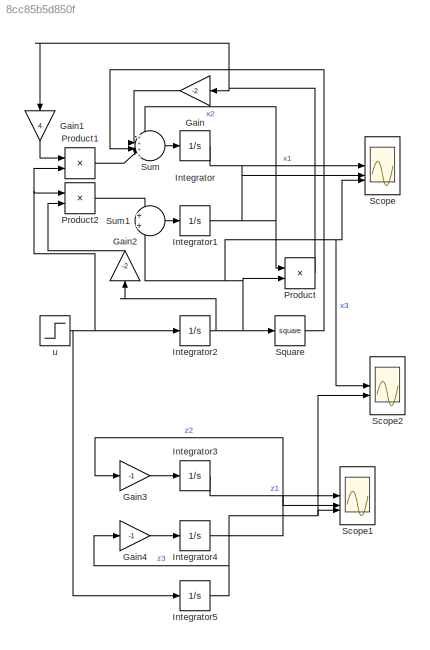
MODEL slx_8cc85b5d850f
KIND model
CONFIG AbsTol = auto
CONFIG EnableMultiTasking = off
CONFIG FixedStep = auto
CONFIG MaxStep = auto
CONFIG MinStep = auto
CONFIG RelTol = 1e-3
CONFIG SampleTimeConstraint = Unconstrained
CONFIG SolverName = VariableStepAuto
CONFIG StartTime = 0.0
CONFIG StopTime = 5
BLOCK [Gain] Gain
  Gain = -2
  NameLocation = top
BLOCK [Gain] Gain1
  Gain = 4
  NameLocation = left
BLOCK [Gain] Gain2
  Gain = -2
  NameLocation = right
BLOCK [Gain] Gain3
  Gain = -1
BLOCK [Gain] Gain4
  Gain = -1
BLOCK [Integrator] Integrator
BLOCK [Integrator] Integrator1
BLOCK [Integrator] Integrator2
BLOCK [Integrator] Integrator3
BLOCK [Integrator] Integrator4
BLOCK [Integrator] Integrator5
BLOCK [Product] Product
BLOCK [Product] Product1
BLOCK [Product] Product2
BLOCK [Scope] Scope
  Floating = off
  NumInputPorts = 3
  ScopeSpecificationString = Simulink.scopes.TimeScopeBlockCfg('CurrentConfiguration', extmgr.ConfigurationSet(extmgr.Configuration('Core','General UI',true),extmgr.Configuration('Core','Source UI',true),extmgr.Configuration('Sources','WiredSimulink',true),extmgr.Configuration('Visuals','Time Domain',true,'SerializedDisplays',{struct('MinYLimReal','-152.96875','MaxYLimReal','22.55208','YLabelReal','','MinYLimMag',' 0.00000','...<+1410ch>
BLOCK [Scope] Scope1
  Floating = off
  NumInputPorts = 3
  ScopeSpecificationString = Simulink.scopes.TimeScopeBlockCfg('CurrentConfiguration', extmgr.ConfigurationSet(extmgr.Configuration('Core','General UI',true),extmgr.Configuration('Core','Source UI',true),extmgr.Configuration('Sources','WiredSimulink',true,'DataLoggingVariableName','ScopeData1'),extmgr.Configuration('Visuals','Time Domain',true,'SerializedDisplays',{struct('MinYLimReal','-16.66667','MaxYLimReal','25.00000','YL...<+1443ch>
BLOCK [Scope] Scope2
  Floating = off
  NumInputPorts = 2
  ScopeSpecificationString = Simulink.scopes.TimeScopeBlockCfg('CurrentConfiguration', extmgr.ConfigurationSet(extmgr.Configuration('Core','General UI',true),extmgr.Configuration('Core','Source UI',true),extmgr.Configuration('Sources','WiredSimulink',true,'DataLoggingVariableName','ScopeData2'),extmgr.Configuration('Visuals','Time Domain',true,'SerializedDisplays',{struct('MinYLimReal','-0.625','MaxYLimReal','5.625','YLabelRe...<+1465ch>
BLOCK [Math] Square
  Operator = square
BLOCK [Sum] Sum
  Inputs = ++++|
BLOCK [Sum] Sum1
BLOCK [Step] u
  SampleTime = 0
  Time = 0
LINE Gain1:1 -> Product1:1
LINE Gain2:1 -> Product2:2
LINE Gain3:1 -> Integrator3:1
LINE Gain4:1 -> Integrator4:1
LINE Gain:1 -> Sum:2
NET Integrator1:1 -> Product:1, Scope:2, Sum:1
NET Integrator2:1 -> Gain2:1, Product:2, Scope2:1, Scope:3, Square:1, Sum1:2
LINE Integrator3:1 -> Scope1:1
NET Integrator4:1 -> Gain3:1, Scope1:2
NET Integrator5:1 -> Gain4:1, Scope1:3, Scope2:2
LINE Integrator:1 -> Scope:1
LINE Product1:1 -> Sum:4
LINE Product2:1 -> Sum1:1
NET Product:1 -> Gain1:1, Gain:1
LINE Square:1 -> Sum:3
LINE Sum1:1 -> Integrator1:1
LINE Sum:1 -> Integrator:1
NET u:1 -> Integrator2:1, Integrator5:1, Product1:2, Product2:1
note: NET lines group one-source signal fan-out (src -> all destinations, sorted); 1:1 wires keep LINE
